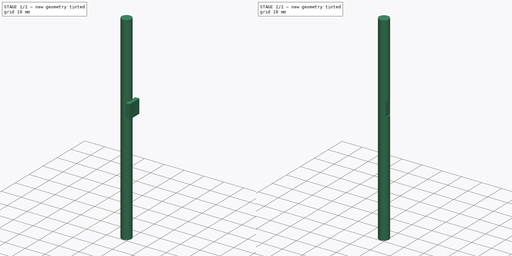
[diagram: build sequence overview — one tinted view per stage of 2, left to right]
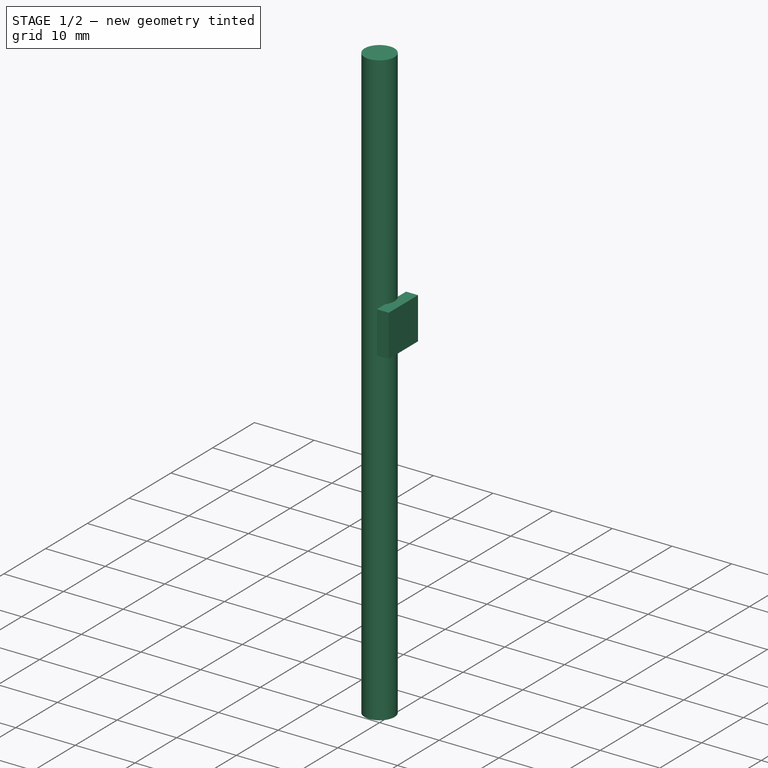
[diagram: stage 1 of 2 — iso view after this stage's code; geometry added in this stage tinted green]
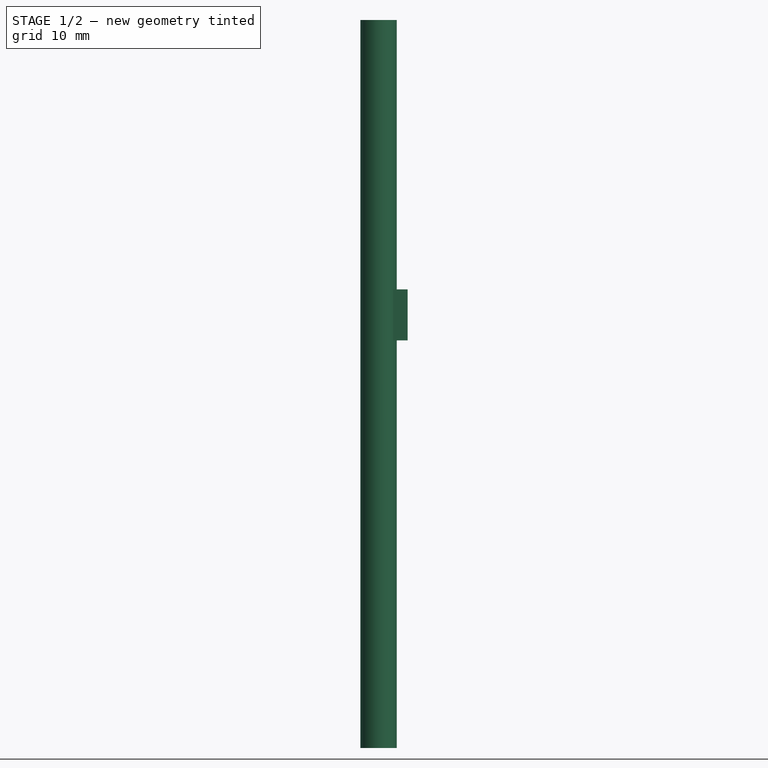
[diagram: stage 1 of 2 — front view after this stage's code; geometry added in this stage tinted green]
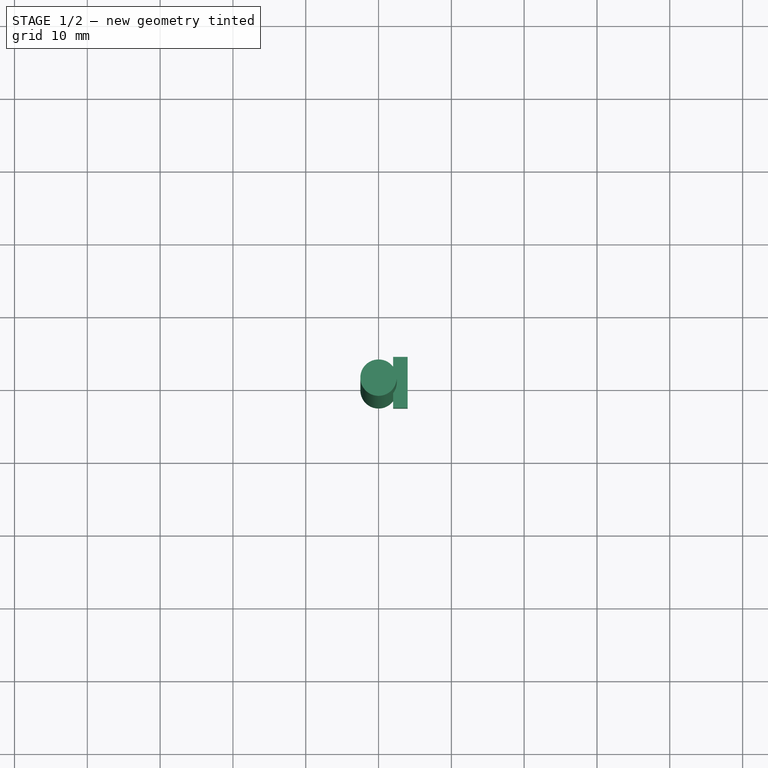
[diagram: stage 1 of 2 — top view after this stage's code; geometry added in this stage tinted green]
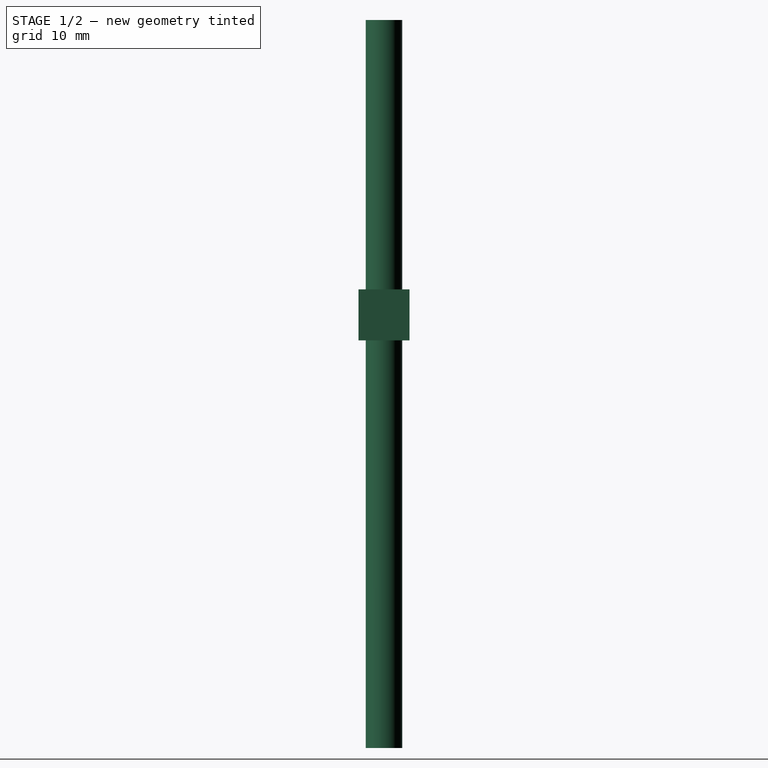
[diagram: stage 1 of 2 — right view after this stage's code; geometry added in this stage tinted green]
FCSTD DOCUMENT  (FreeCAD 0.17R5235 (Git shallow))
Label: C1060-1_worn_shaft
License: All rights reserved
LicenseURL: http://en.wikipedia.org/wiki/All_rights_reserved
objects: Drawing::FeatureViewPython×13, Drawing::FeatureViewPart×3, Sketcher::SketchObject×2, PartDesign::Pad×2, Part::Cut×1, Drawing::FeaturePage×1
note: 7 computed .brp shape members not serialized (recipe doc carries the construction recipe); baked Part::Feature solids carry a one-line shape summary decoded from their .brp

FEATURE [Sketcher::SketchObject] Sketch
  MapMode = 5
  sketch-geometry (1):
    g0: Circle CenterX=0 CenterY=0 CenterZ=0 NormalX=0 NormalY=0 NormalZ=1 AngleXU=0 Radius=2.5
  constraints (2):
    c: Coincident(g0,g-1)
    c: Radius(g0) = 2.5
FEATURE [Sketcher::SketchObject] Sketch001
  MapMode = 5
  Placement = pos=(2,0,0) rot=(0.57735,0.57735,0.57735;2.0944rad)
  sketch-geometry (4):
    g0: LineSegment StartX=-3.5 StartY=63 StartZ=0 EndX=3.5 EndY=63 EndZ=0
    g1: LineSegment StartX=3.5 StartY=63 StartZ=0 EndX=3.5 EndY=56 EndZ=0
    g2: LineSegment StartX=3.5 StartY=56 StartZ=0 EndX=-3.5 EndY=56 EndZ=0
    g3: LineSegment StartX=-3.5 StartY=56 StartZ=0 EndX=-3.5 EndY=63 EndZ=0
  constraints (12):
    c: Coincident(g0,g1)
    c: Coincident(g1,g2)
    c: Coincident(g2,g3)
    c: Coincident(g3,g0)
    c: Horizontal(g0)
    c: Horizontal(g2)
    c: Vertical(g1)
    c: Vertical(g3)
    c: Equal(g1,g0)
    c: DistanceY(g1,g1) = 7
    c: DistanceY(g-1,g2) = 56
    c: Symmetric(g0,g0,g-2)
FEATURE [PartDesign::Pad] Pad
  Length = 100
  Length2 = 100
  Profile = -> Sketch
  Type = 0
FEATURE [PartDesign::Pad] Pad001
  Length = 2
  Length2 = 100
  Placement = pos=(2,0,0) rot=(0.57735,0.57735,0.57735;2.0944rad)
  Profile = -> Sketch001
  Type = 0
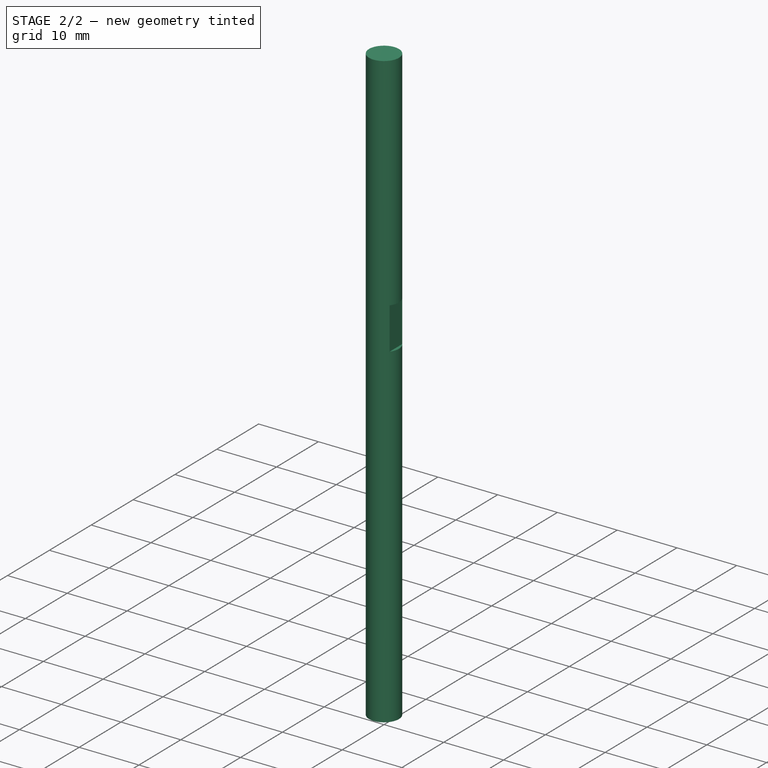
[diagram: stage 2 of 2 — iso view after this stage's code; geometry added in this stage tinted green]
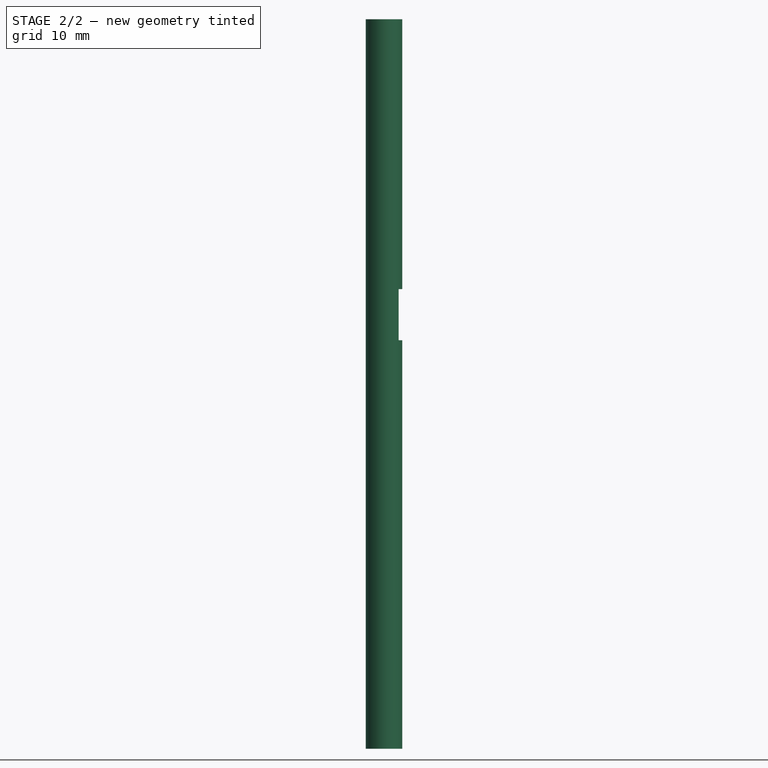
[diagram: stage 2 of 2 — front view after this stage's code; geometry added in this stage tinted green]
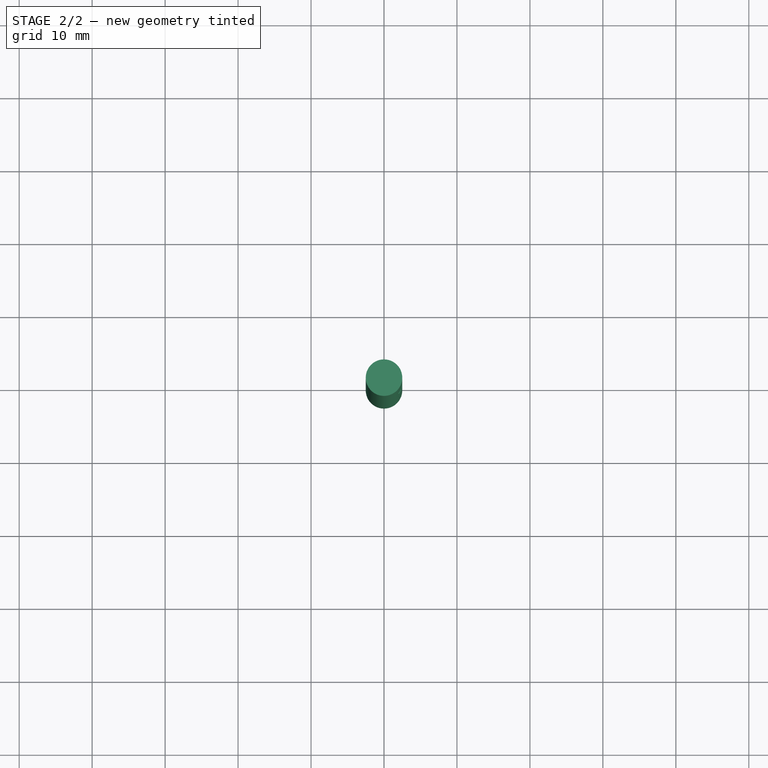
[diagram: stage 2 of 2 — top view after this stage's code; geometry added in this stage tinted green]
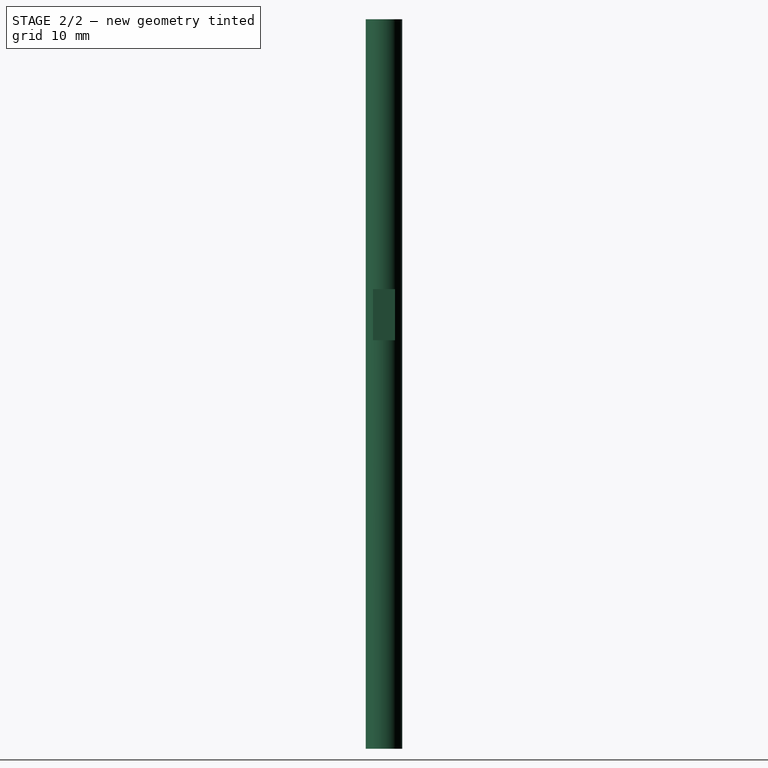
[diagram: stage 2 of 2 — right view after this stage's code; geometry added in this stage tinted green]
FEATURE [Part::Cut] Cut
  Base = -> Pad
  Tool = -> Pad001
FEATURE [Drawing::FeatureViewPart] Ortho  label="Ortho_0_0"
  Direction = (1,0,0)
  HiddenWidth = 0.15
  LineWidth = 0.35
  Rotation = -90
  ShowHiddenLines = false
  ShowSmoothLines = false
  Source = -> Cut
  Tolerance = 0.05
  ViewResult = <blob: 2212 chars omitted>
  Visible = true
  X = 54.8273
  Y = 171.667
FEATURE [Drawing::FeatureViewPart] Ortho001  label="Ortho_0_1"
  Direction = (0,0,-1)
  HiddenWidth = 0.15
  LineWidth = 0.35
  Rotation = 90
  ShowHiddenLines = false
  ShowSmoothLines = false
  Source = -> Cut
  Tolerance = 0.05
  ViewResult = <g id="Ortho_0_1"\n   transform="rotate(90,54.8273,40.8333) translate(54.8273,40.8333) scale(1,1)"\n  >\n<g   fill="none"\n   stroke="rgb(0, 0, 0)"\n   stroke-linecap="butt"\n   stroke-linejoin="miter"\n   stroke-width="0.350000"\n   transform="scale(1,-1)"\n  >\n<circle cx ="0" cy ="0" r ="2.5" /></g>\n</g>
  Visible = true
  X = 54.8273
  Y = 40.8333
FEATURE [Drawing::FeatureViewPart] Ortho002  label="Ortho_1_1"
  Direction = (0.57735,-0.57735,0.57735)
  HiddenWidth = 0.15
  LineWidth = 0.35
  Rotation = 120
  ShowHiddenLines = false
  ShowSmoothLines = false
  Source = -> Cut
  Tolerance = 0.05
  ViewResult = <g id="Ortho_1_1"\n   transform="rotate(120,150,65) translate(150,65) scale(1,1)"\n  >\n<g   fill="none"\n   stroke="rgb(0, 0, 0)"\n   stroke-linecap="butt"\n   stroke-linejoin="miter"\n   stroke-width="0.350000"\n   transform="scale(1,-1)"\n  >\n<path id= "1" d=" M -71.9607 38.6598 L -1.25 -2.16506 " />\n<path id= "2" d=" M -69.4607 42.9899 L 1.25 2.16506 " />\n</g>\n<g   fill="none"\n   stroke="rgb(0, 0, 0)"\n   stroke-linecap="butt"\n   stroke-linejoin="miter"\n   stroke-width="0.350000"\n   transform="scale(1,-1)"\n  >\n<path d="M1.76777 1.02062 A2.5 1.44338 60 0 1 1.25 2.16506" />\n<path d="M-1.25 -2.16506 A2.5 1.44338 60 0 1 1.76777 1.02062" />\n<path d="M-37.8302 23.8825 A2.5 1.44338 -120 0 0 -38.1838 22.4537" />\n<path id= "4" d=" M -43.1335 25.3114 L -38.1838 22.4537 " />\n<path d="M-42.78 26.7403 A2.5 1.44338 -120 0 0 -43.1335 25.3114" />\n<path d="M-68.9429 41.8454 A2.5 1.44338 60 0 1 -69.4607 42.9899" />\n<path d="M-69.4607 42.9899 A2.5 1.44338 60 0 1 -71.9607 38.6598" />\n<path d="M-71.9607 38.6598 A2.5 1.44338 60 0 1 -68.9429 41.8454" />\n<path d="M-43.1335 27.7609 A2.5 1.44338 -120 0 0 -42.78 26.7403" />\n<path id= "10" d=" M -43.1335 27.7609 L -38.1838 24.9031 " />\n<path d="M-38.1838 24.9031 A2.5 1.44338 -120 0 0 -37.8302 23.8825" />\n<path id= "12" d=" M -38.1838 24.9031 L -38.1838 22.4537 " />\n</g>\n</g>
  Visible = true
  X = 150
  Y = 65
FEATURE [Drawing::FeatureViewPython] dim001  # drawing view (typed FeaturePython)
  Rotation = 0
  ViewResult = <g> \n  <line x1="55.059530" y1="171.667000" x2="96.500000" y2="171.667000" style="stroke:rgb(0,0,0);stroke-width:0.20" />\n<line x1="56.001602" y1="71.667000" x2="96.500000" y2="71.667000" style="stroke:rgb(0,0,0);stroke-width:0.20" />\n<line x1="95.500000" y1="171.667000" x2="95.500000" y2="71.667000" style="stroke:rgb(0,0,0);stroke-width:0.20" /> \n  <polygon points="95.500000,71.667000 94.500000,74.667000 95.500000,75.667000 96.500000,74.667000" style="fill:rgb(0,0,0);stroke:rgb(0,0,0);stroke-width:0" /><polygon points="95.500000,171.667000 96.500000,168.667000 95.500000,167.667000 94.500000,168.667000" style="fill:rgb(0,0,0);stroke:rgb(0,0,0);stroke-width:0" /> \n  <text x="93.500000" y="121.667000" font-family="inherit" font-size="3.6" fill="rgb(0,0,0)" text-anchor="middle" transform="rotate(-90.000000 93.500000,121.667000)" >100</text> </g>
  Visible = true
  X = 0
  Y = 0
  arrowL1 = 3
  arrowL2 = 1
  arrowW = 2
  arrow_scheme = 0
  autoPlaceOffset = 2
  autoPlaceText = true
  click1_x = 95.5
  click1_y = 96
  click2_x = 95.5
  click2_y = 96
  comma_decimal_place = true
  dimension_line_overshoot = 1
  gap_datum_points = 2
  halfDimension_linear = false
  lineColor = rgb(0,0,0)
  strokeWidth = 0.2
  textFormat_linear = %(value)3.1f
  textRenderer_color = rgb(0,0,0)
  textRenderer_family = inherit
  textRenderer_size = 3.6
  unit_custom_scale = 1
  unit_scheme = 0
FEATURE [Drawing::FeatureViewPython] dim002  # drawing view (typed FeaturePython)
  Rotation = 0
  ViewResult = <g> \n  <line x1="59.311580" y1="71.667000" x2="74.000000" y2="71.667000" style="stroke:rgb(0,0,0);stroke-width:0.20" />\n<line x1="58.327300" y1="108.667000" x2="74.000000" y2="108.667000" style="stroke:rgb(0,0,0);stroke-width:0.20" />\n<line x1="73.000000" y1="71.667000" x2="73.000000" y2="108.667000" style="stroke:rgb(0,0,0);stroke-width:0.20" /> \n  <polygon points="73.000000,108.667000 74.000000,105.667000 73.000000,104.667000 72.000000,105.667000" style="fill:rgb(0,0,0);stroke:rgb(0,0,0);stroke-width:0" /><polygon points="73.000000,71.667000 72.000000,74.667000 73.000000,75.667000 74.000000,74.667000" style="fill:rgb(0,0,0);stroke:rgb(0,0,0);stroke-width:0" /> \n  <text x="71.000000" y="90.167000" font-family="inherit" font-size="3.6" fill="rgb(0,0,0)" text-anchor="middle" transform="rotate(-90.000000 71.000000,90.167000)" >37</text> </g>
  Visible = true
  X = 0
  Y = 0
  arrowL1 = 3
  arrowL2 = 1
  arrowW = 2
  arrow_scheme = 0
  autoPlaceOffset = 2
  autoPlaceText = true
  click1_x = 73
  click1_y = 103
  click2_x = 73
  click2_y = 103
  comma_decimal_place = true
  dimension_line_overshoot = 1
  gap_datum_points = 2
  halfDimension_linear = false
  lineColor = rgb(0,0,0)
  strokeWidth = 0.2
  textFormat_linear = %(value)3.1f
  textRenderer_color = rgb(0,0,0)
  textRenderer_family = inherit
  textRenderer_size = 3.6
  unit_custom_scale = 1
  unit_scheme = 0
FEATURE [Drawing::FeatureViewPython] dim003  # drawing view (typed FeaturePython)
  Rotation = 0
  ViewResult = <g> \n  <line x1="58.327300" y1="108.667000" x2="74.000000" y2="108.667000" style="stroke:rgb(0,0,0);stroke-width:0.20" />\n<line x1="58.327300" y1="115.667000" x2="74.000000" y2="115.667000" style="stroke:rgb(0,0,0);stroke-width:0.20" />\n<line x1="73.000000" y1="108.667000" x2="73.000000" y2="115.667000" style="stroke:rgb(0,0,0);stroke-width:0.20" /> \n  <polygon points="73.000000,115.667000 72.000000,118.667000 73.000000,119.667000 74.000000,118.667000" style="fill:rgb(0,0,0);stroke:rgb(0,0,0);stroke-width:0" /><polygon points="73.000000,108.667000 74.000000,105.667000 73.000000,104.667000 72.000000,105.667000" style="fill:rgb(0,0,0);stroke:rgb(0,0,0);stroke-width:0" /> \n  <text x="71.000000" y="112.167000" font-family="inherit" font-size="3.6" fill="rgb(0,0,0)" text-anchor="middle" transform="rotate(-90.000000 71.000000,112.167000)" >7</text> </g>
  Visible = true
  X = 0
  Y = 0
  arrowL1 = 3
  arrowL2 = 1
  arrowW = 2
  arrow_scheme = 0
  autoPlaceOffset = 2
  autoPlaceText = true
  click1_x = 73
  click1_y = 117
  click2_x = 73
  click2_y = 117
  comma_decimal_place = true
  dimension_line_overshoot = 1
  gap_datum_points = 2
  halfDimension_linear = false
  lineColor = rgb(0,0,0)
  strokeWidth = 0.2
  textFormat_linear = %(value)3.1f
  textRenderer_color = rgb(0,0,0)
  textRenderer_family = inherit
  textRenderer_size = 3.6
  unit_custom_scale = 1
  unit_scheme = 0
FEATURE [Drawing::FeatureViewPython] dia001  # drawing view (typed FeaturePython)
  Rotation = 0
  ViewResult = <g>  <circle cx ="54.827300" cy ="40.833300" r="0.250000" stroke="none" fill="rgb(0,0,0)" /> \n<line x1="64.500000" y1="32.500000" x2="52.933268" y2="42.465061" style="stroke:rgb(0,0,0);stroke-width:0.20" />\n<polygon points="56.721332,39.201539 59.646874,38.001039 59.751782,36.590721 58.341465,36.485813" style="fill:rgb(0,0,0);stroke:rgb(0,0,0);stroke-width:0" />\n<polygon points="52.933268,42.465061 50.007726,43.665561 49.902818,45.075879 51.313135,45.180787" style="fill:rgb(0,0,0);stroke:rgb(0,0,0);stroke-width:0" />\n<line x1="64.500000" y1="32.500000" x2="75.500000" y2="32.500000" style="stroke:rgb(0,0,0);stroke-width:0.20" />\n<text x="70.000000" y="30.500000" font-family="inherit" font-size="3.6" fill="rgb(0,0,0)" text-anchor="middle" transform="rotate(0.000000 70.000000,30.500000)" >Ø5</text> </g>
  Visible = true
  X = 0
  Y = 0
  arrowL1 = 3
  arrowL2 = 1
  arrowW = 2
  arrow_scheme = 0
  autoPlaceOffset = 2
  autoPlaceText = true
  centerPointDia = 0.5
  click1_x = 64.5
  click1_y = 32.5
  click2_x = 75.5
  click2_y = 32.5
  click3_x = 75.5
  click3_y = 32.5
  comma_decimal_place = true
  lineColor = rgb(0,0,0)
  strokeWidth = 0.2
  textFormat_circular = Ø%(value)3.3f
  textRenderer_color = rgb(0,0,0)
  textRenderer_family = inherit
  textRenderer_size = 3.6
  unit_custom_scale = 1
  unit_scheme = 0
FEATURE [Drawing::FeatureViewPython] text002  # drawing view (typed FeaturePython)
  Rotation = 0
  ViewResult = <g> <text x="170.000000" y="138.000000" font-family="inherit" font-size="5" fill="rgb(0,0,0)" text-anchor="inherit" transform="rotate(0.000000 170.000000,138.000000)" >Material: M5 Threaded rod  A2 stainless steel (304)</text> </g>
  Visible = true
  X = 0
  Y = 0
  click1_x = 170
  click1_y = 138
  rotation = 0
  text = Material: M5 Threaded rod  A2 stainless steel (304)
  textRenderer_addText_color = rgb(0,0,0)
  textRenderer_addText_family = inherit
  textRenderer_addText_size = 5
FEATURE [Drawing::FeatureViewPython] text001  # drawing view (typed FeaturePython)
  Rotation = 0
  ViewResult = <g> <text x="170.000000" y="132.000000" font-family="inherit" font-size="5" fill="rgb(0,0,0)" text-anchor="inherit" transform="rotate(0.000000 170.000000,132.000000)" >Note:</text> </g>
  Visible = true
  X = 0
  Y = 0
  click1_x = 170
  click1_y = 132
  rotation = 0
  text = Note:
  textRenderer_addText_color = rgb(0,0,0)
  textRenderer_addText_family = inherit
  textRenderer_addText_size = 5
FEATURE [Drawing::FeatureViewPython] text005  # drawing view (typed FeaturePython)
  Rotation = 0
  ViewResult = <g> <text x="76.000000" y="27.000000" font-family="inherit" font-size="3.6" fill="rgb(0,0,0)" text-anchor="inherit" transform="rotate(0.000000 76.000000,27.000000)" >Typical Diameter of M5</text> </g>
  Visible = true
  X = 0
  Y = 0
  click1_x = 76
  click1_y = 27
  rotation = 0
  text = Typical Diameter of M5
  textRenderer_addText_color = rgb(0,0,0)
  textRenderer_addText_family = inherit
  textRenderer_addText_size = 3.6
FEATURE [Drawing::FeatureViewPython] text006  # drawing view (typed FeaturePython)
  Rotation = 0
  ViewResult = <g> <text x="76.000000" y="31.000000" font-family="inherit" font-size="3.6" fill="rgb(0,0,0)" text-anchor="inherit" transform="rotate(0.000000 76.000000,31.000000)" >Threaded Rod is 4.9mm</text> </g>
  Visible = true
  X = 0
  Y = 0
  click1_x = 76
  click1_y = 31
  rotation = 0
  text = Threaded Rod is 4.9mm
  textRenderer_addText_color = rgb(0,0,0)
  textRenderer_addText_family = inherit
  textRenderer_addText_size = 3.6
FEATURE [Drawing::FeatureViewPython] weld001  # drawing view (typed FeaturePython)
  Rotation = 0
  ViewResult = <g   >\n<line x1="60.000000" y1="61.000000" x2="54.827300" y2="71.667000" style="stroke:rgb(0,0,0);stroke-width:0.20" />\n<polygon points="54.827300,71.667000 57.036076,69.403969 56.572618,68.067852 55.236502,68.531310" style="fill:rgb(0,0,0);stroke:rgb(0,0,0);stroke-width:0" />\n<line x1="60.000000" y1="61.000000" x2="73.500000" y2="61.000000" style="stroke:rgb(0,0,0);stroke-width:0.20" />\n</g> 
  Visible = true
  X = 0
  Y = 0
  arrowL1 = 3
  arrowL2 = 1
  arrowW = 2
  click1_x = 60
  click1_y = 61
  click2_x = 73.5
  click2_y = 59
  lineColor = rgb(0,0,0)
  strokeWidth = 0.2
  textRenderer_color = rgb(0,0,0)
  textRenderer_family = inherit
  textRenderer_size = 3.6
FEATURE [Drawing::FeatureViewPython] text003  # drawing view (typed FeaturePython)
  Rotation = 0
  ViewResult = <g> <text x="60.000000" y="60.000000" font-family="inherit" font-size="3.6" fill="rgb(0,0,0)" text-anchor="inherit" transform="rotate(0.000000 60.000000,60.000000)" >Zero Ref</text> </g>
  Visible = true
  X = 0
  Y = 0
  click1_x = 60
  click1_y = 60
  rotation = 0
  text = Zero Ref
  textRenderer_addText_color = rgb(0,0,0)
  textRenderer_addText_family = inherit
  textRenderer_addText_size = 3.6
FEATURE [Drawing::FeatureViewPython] weld002  # drawing view (typed FeaturePython)
  Rotation = 0
  ViewResult = <g   >\n<line x1="40.000000" y1="105.000000" x2="53.327300" y2="112.167000" style="stroke:rgb(0,0,0);stroke-width:0.20" />\n<polygon points="53.327300,112.167000 51.158749,109.865395 49.804397,110.272494 50.211496,111.626846" style="fill:rgb(0,0,0);stroke:rgb(0,0,0);stroke-width:0" />\n<line x1="40.000000" y1="105.000000" x2="20.000000" y2="105.000000" style="stroke:rgb(0,0,0);stroke-width:0.20" />\n</g> 
  Visible = true
  X = 0
  Y = 0
  arrowL1 = 3
  arrowL2 = 1
  arrowW = 2
  click1_x = 40
  click1_y = 105
  click2_x = 20
  click2_y = 107.5
  lineColor = rgb(0,0,0)
  strokeWidth = 0.2
  textRenderer_color = rgb(0,0,0)
  textRenderer_family = inherit
  textRenderer_size = 3.6
FEATURE [Drawing::FeatureViewPython] text004  # drawing view (typed FeaturePython)
  Rotation = 0
  ViewResult = <g> <text x="19.500000" y="100.000000" font-family="inherit" font-size="3.6" fill="rgb(0,0,0)" text-anchor="inherit" transform="rotate(0.000000 19.500000,100.000000)" >Use a file to</text> </g>
  Visible = true
  X = 0
  Y = 0
  click1_x = 19.5
  click1_y = 100
  rotation = 0
  text = Use a file to
  textRenderer_addText_color = rgb(0,0,0)
  textRenderer_addText_family = inherit
  textRenderer_addText_size = 3.6
FEATURE [Drawing::FeatureViewPython] text007  # drawing view (typed FeaturePython)
  Rotation = 0
  ViewResult = <g> <text x="19.500000" y="104.000000" font-family="inherit" font-size="3.6" fill="rgb(0,0,0)" text-anchor="inherit" transform="rotate(0.000000 19.500000,104.000000)" >make the slot</text> </g>
  Visible = true
  X = 0
  Y = 0
  click1_x = 19.5
  click1_y = 104
  rotation = 0
  text = make the slot
  textRenderer_addText_color = rgb(0,0,0)
  textRenderer_addText_family = inherit
  textRenderer_addText_size = 3.6
FEATURE [Drawing::FeaturePage] Page
  EditableTexts = Azisi | 11/06/2018 | 1:1 | N/A | C1060-1 | Shaft For Worm Gear  | 1/1 | A | DIN ISO 2768- mk | - | Note
  Group = -> [Ortho,Ortho001,Ortho002,dim001,dim002,dim003,dia001,text002,text001,text005,text006,weld001,text003,weld002,text004,text007]
  Template = <userpath>/Documents/lsf-templates/freecad-template/A4_Landscape_lsf_drawing.svg
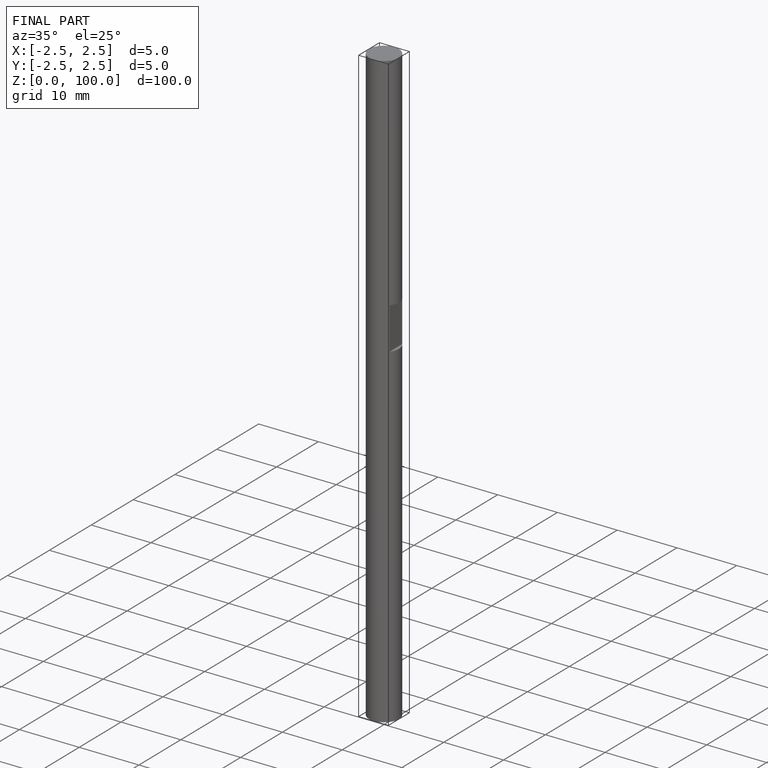
[diagram: finished part — iso view with bounding-box wireframe]
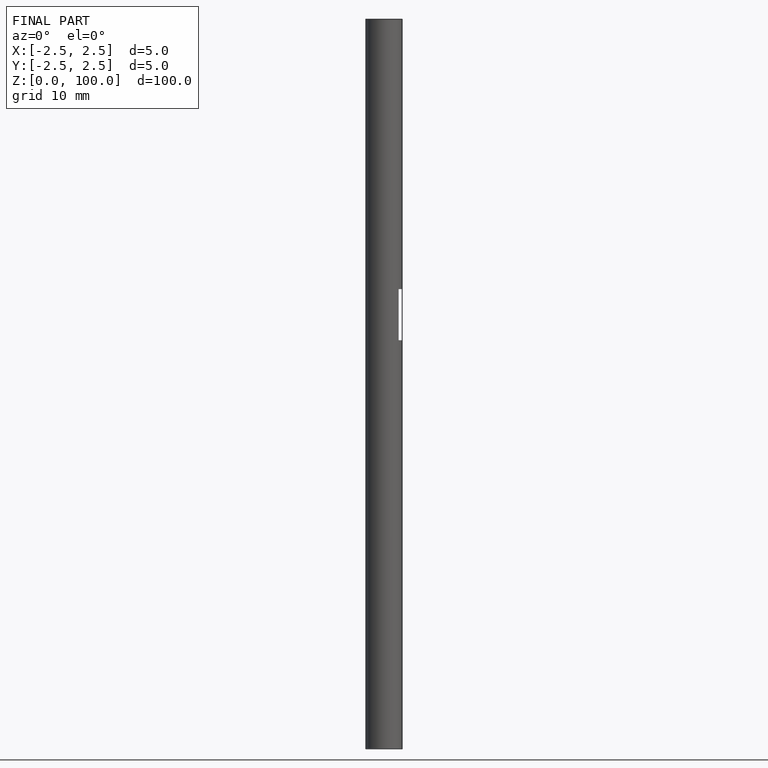
[diagram: finished part — front view with bounding-box wireframe]
